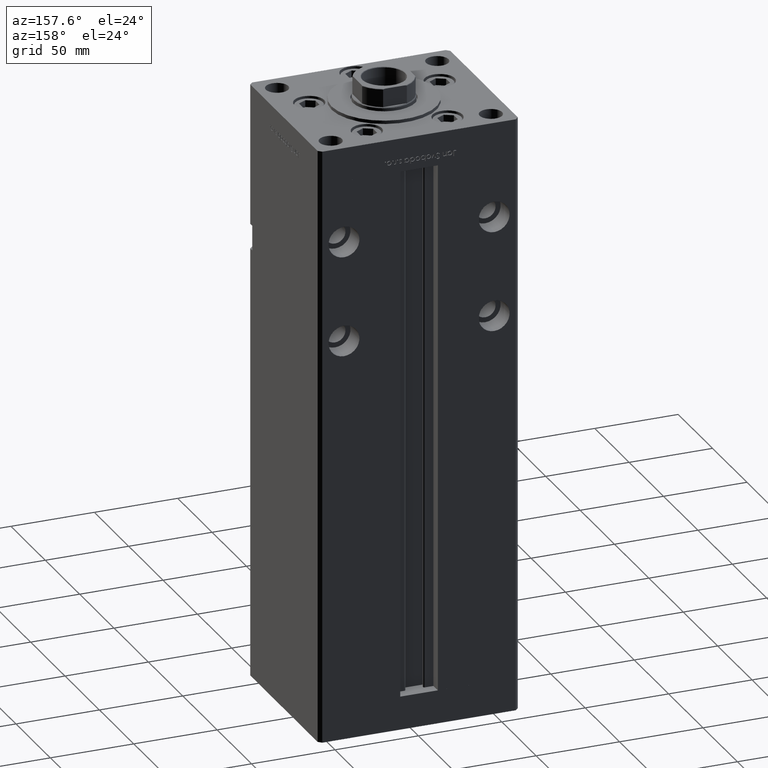
[diagram: clean part render]
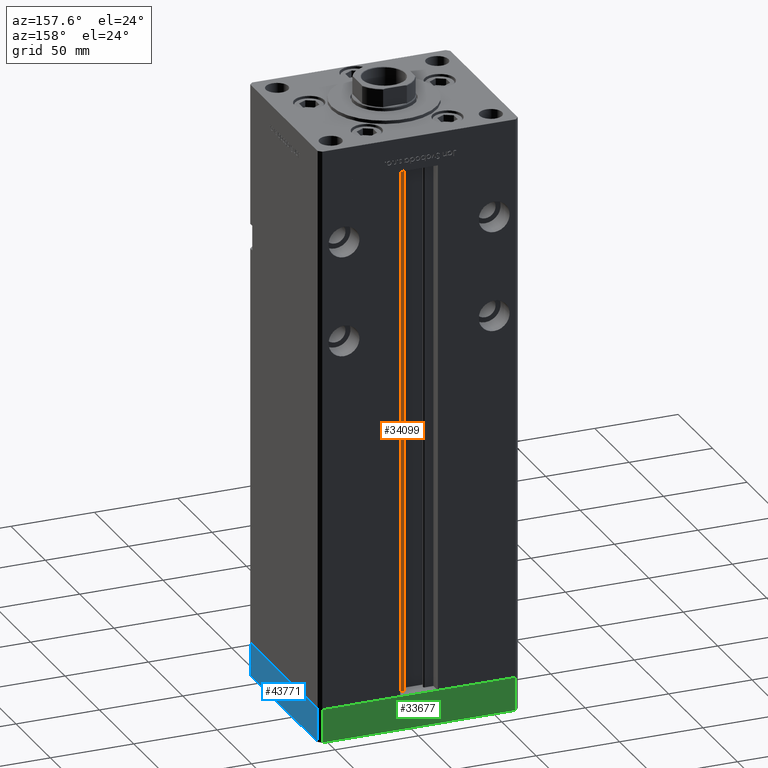
[diagram: same view with three faces highlighted in distinct colors, each labeled with its STEP entity id]
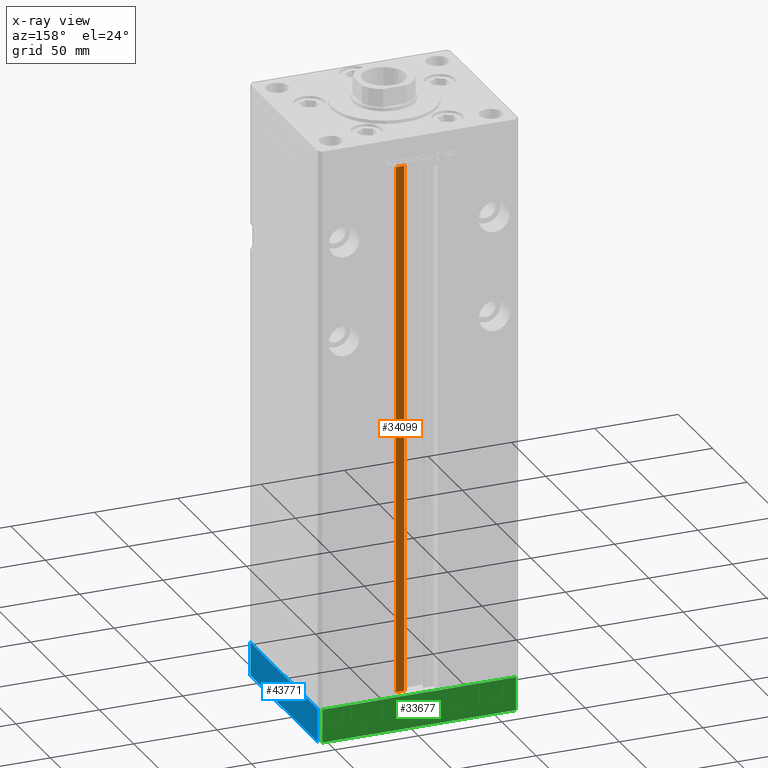
[diagram: x-ray of the same camera — body ghosted, the three highlighted faces saturated]
A machine part, auxiliary view with three faces highlighted in distinct colors.
The next image is the same camera in x-ray (body ghosted, the three faces saturated) — at least one of them is partly hidden behind the body in this view.
Their STEP definitions:

[orange] entity #34099 — the highlighted planar face has unit normal (0, -1, 0).
#891 = PLANE ( 'NONE',  #11999 ) ;
#2201 = VERTEX_POINT ( 'NONE', #43640 ) ;
#2742 = LINE ( 'NONE', #39762, #47132 ) ;
#3332 = CARTESIAN_POINT ( 'NONE',  ( 6.183333333333997928, 44.50000000000000711, 0.000000000000000000 ) ) ;
#3602 = VECTOR ( 'NONE', #36067, 1000.000000000000000 ) ;
#4915 = CARTESIAN_POINT ( 'NONE',  ( 6.183333333333997928, 44.50000000000000711, 0.000000000000000000 ) ) ;
#9753 = FACE_OUTER_BOUND ( 'NONE', #33207, .T. ) ;
#10016 = DIRECTION ( 'NONE',  ( 0.000000000000000000, -1.000000000000000000, 0.000000000000000000 ) ) ;
#11999 = AXIS2_PLACEMENT_3D ( 'NONE', #4915, #10016, #42477 ) ;
#13197 = LINE ( 'NONE', #33595, #51918 ) ;
#15438 = VERTEX_POINT ( 'NONE', #39069 ) ;
#19665 = CARTESIAN_POINT ( 'NONE',  ( 6.183333333333997928, 44.50000000000000711, 0.000000000000000000 ) ) ;
#20857 = VERTEX_POINT ( 'NONE', #19665 ) ;
#21439 = EDGE_CURVE ( 'NONE', #15438, #2201, #13197, .T. ) ;
#22645 = DIRECTION ( 'NONE',  ( -0.000000000000000000, -0.000000000000000000, 1.000000000000000000 ) ) ;
#27919 = ORIENTED_EDGE ( 'NONE', *, *, #34216, .T. ) ;
#28063 = CARTESIAN_POINT ( 'NONE',  ( 0.000000000000000000, 44.50000000000000711, 318.5000000000000000 ) ) ;
#28797 = ORIENTED_EDGE ( 'NONE', *, *, #21439, .F. ) ;
#29585 = DIRECTION ( 'NONE',  ( -0.000000000000000000, -0.000000000000000000, 1.000000000000000000 ) ) ;
#33207 = EDGE_LOOP ( 'NONE', ( #28797, #44274, #27919, #42712 ) ) ;
#33595 = CARTESIAN_POINT ( 'NONE',  ( 11.24999999999999822, 44.50000000000000711, 0.000000000000000000 ) ) ;
#34099 = ADVANCED_FACE ( 'NONE', ( #9753 ), #891, .F. ) ;
#34216 = EDGE_CURVE ( 'NONE', #20857, #51157, #2742, .T. ) ;
#34705 = EDGE_CURVE ( 'NONE', #2201, #51157, #52995, .T. ) ;
#35601 = CARTESIAN_POINT ( 'NONE',  ( 6.183333333333997928, 44.50000000000000711, 318.5000000000000000 ) ) ;
#36067 = DIRECTION ( 'NONE',  ( 1.000000000000000000, 0.000000000000000000, 0.000000000000000000 ) ) ;
#39069 = CARTESIAN_POINT ( 'NONE',  ( 11.24999999999999822, 44.50000000000000711, 0.000000000000000000 ) ) ;
#39762 = CARTESIAN_POINT ( 'NONE',  ( 6.183333333333997928, 44.50000000000000711, 0.000000000000000000 ) ) ;
#42477 = DIRECTION ( 'NONE',  ( 0.000000000000000000, -0.000000000000000000, -1.000000000000000000 ) ) ;
#42712 = ORIENTED_EDGE ( 'NONE', *, *, #34705, .F. ) ;
#43640 = CARTESIAN_POINT ( 'NONE',  ( 11.24999999999999822, 44.50000000000000711, 318.5000000000000000 ) ) ;
#43848 = LINE ( 'NONE', #3332, #3602 ) ;
#44258 = EDGE_CURVE ( 'NONE', #20857, #15438, #43848, .T. ) ;
#44274 = ORIENTED_EDGE ( 'NONE', *, *, #44258, .F. ) ;
#47132 = VECTOR ( 'NONE', #22645, 1000.000000000000000 ) ;
#48681 = DIRECTION ( 'NONE',  ( -1.000000000000000000, 0.000000000000000000, 0.000000000000000000 ) ) ;
#50579 = VECTOR ( 'NONE', #48681, 1000.000000000000000 ) ;
#51157 = VERTEX_POINT ( 'NONE', #35601 ) ;
#51918 = VECTOR ( 'NONE', #29585, 1000.000000000000000 ) ;
#52995 = LINE ( 'NONE', #28063, #50579 ) ;

[blue] entity #43771 — the highlighted planar face has unit normal (1, 0, 0).
#65 = VERTEX_POINT ( 'NONE', #50177 ) ;
#1006 = VECTOR ( 'NONE', #2671, 1000.000000000000000 ) ;
#1621 = LINE ( 'NONE', #18797, #1006 ) ;
#1968 = CARTESIAN_POINT ( 'NONE',  ( -60.00000000000000000, 48.99999999999995737, 0.000000000000000000 ) ) ;
#2508 = VERTEX_POINT ( 'NONE', #40867 ) ;
#2671 = DIRECTION ( 'NONE',  ( 0.000000000000000000, -1.000000000000000000, 0.000000000000000000 ) ) ;
#7812 = CARTESIAN_POINT ( 'NONE',  ( -60.00000000000000000, 48.99999999999995737, 0.000000000000000000 ) ) ;
#11687 = EDGE_CURVE ( 'NONE', #29225, #65, #13500, .T. ) ;
#13015 = AXIS2_PLACEMENT_3D ( 'NONE', #27635, #51258, #43197 ) ;
#13500 = LINE ( 'NONE', #30153, #46485 ) ;
#14316 = DIRECTION ( 'NONE',  ( 0.000000000000000000, -1.000000000000000000, 0.000000000000000000 ) ) ;
#15859 = EDGE_LOOP ( 'NONE', ( #51934, #50645, #27486, #52547 ) ) ;
#18797 = CARTESIAN_POINT ( 'NONE',  ( -60.00000000000000000, 48.99999999999995737, -20.00000000000000000 ) ) ;
#19207 = CARTESIAN_POINT ( 'NONE',  ( -60.00000000000000000, -49.00000000000000000, -20.00000000000000000 ) ) ;
#20348 = EDGE_CURVE ( 'NONE', #2508, #37166, #46049, .T. ) ;
#25314 = EDGE_CURVE ( 'NONE', #37166, #65, #29894, .T. ) ;
#26848 = PLANE ( 'NONE',  #13015 ) ;
#27486 = ORIENTED_EDGE ( 'NONE', *, *, #42750, .T. ) ;
#27635 = CARTESIAN_POINT ( 'NONE',  ( -60.00000000000000000, 48.99999999999995737, -20.00000000000000000 ) ) ;
#29225 = VERTEX_POINT ( 'NONE', #19207 ) ;
#29703 = CARTESIAN_POINT ( 'NONE',  ( -60.00000000000000000, 48.99999999999995737, -20.00000000000000000 ) ) ;
#29894 = LINE ( 'NONE', #1968, #38291 ) ;
#30153 = CARTESIAN_POINT ( 'NONE',  ( -60.00000000000000000, -49.00000000000000000, -20.00000000000000000 ) ) ;
#33718 = DIRECTION ( 'NONE',  ( 0.000000000000000000, 0.000000000000000000, 1.000000000000000000 ) ) ;
#34626 = FACE_OUTER_BOUND ( 'NONE', #15859, .T. ) ;
#37166 = VERTEX_POINT ( 'NONE', #7812 ) ;
#38291 = VECTOR ( 'NONE', #14316, 1000.000000000000000 ) ;
#40867 = CARTESIAN_POINT ( 'NONE',  ( -60.00000000000000000, 48.99999999999995737, -20.00000000000000000 ) ) ;
#42739 = DIRECTION ( 'NONE',  ( 0.000000000000000000, 0.000000000000000000, 1.000000000000000000 ) ) ;
#42750 = EDGE_CURVE ( 'NONE', #2508, #29225, #1621, .T. ) ;
#43197 = DIRECTION ( 'NONE',  ( 0.000000000000000000, 0.000000000000000000, 1.000000000000000000 ) ) ;
#43771 = ADVANCED_FACE ( 'NONE', ( #34626 ), #26848, .T. ) ;
#46049 = LINE ( 'NONE', #29703, #49297 ) ;
#46485 = VECTOR ( 'NONE', #42739, 1000.000000000000000 ) ;
#49297 = VECTOR ( 'NONE', #33718, 1000.000000000000000 ) ;
#50177 = CARTESIAN_POINT ( 'NONE',  ( -60.00000000000000000, -49.00000000000000000, 0.000000000000000000 ) ) ;
#50645 = ORIENTED_EDGE ( 'NONE', *, *, #20348, .F. ) ;
#51258 = DIRECTION ( 'NONE',  ( -1.000000000000000000, 0.000000000000000000, 0.000000000000000000 ) ) ;
#51934 = ORIENTED_EDGE ( 'NONE', *, *, #25314, .F. ) ;
#52547 = ORIENTED_EDGE ( 'NONE', *, *, #11687, .T. ) ;

[green] entity #33677 — the highlighted planar face has unit normal (-0, 1, 0).
#3701 = VECTOR ( 'NONE', #17426, 1000.000000000000000 ) ;
#4085 = VERTEX_POINT ( 'NONE', #7791 ) ;
#6421 = ORIENTED_EDGE ( 'NONE', *, *, #8456, .T. ) ;
#6737 = VERTEX_POINT ( 'NONE', #31047 ) ;
#7791 = CARTESIAN_POINT ( 'NONE',  ( -57.99999999999999289, 50.99999999999997868, 0.000000000000000000 ) ) ;
#8456 = EDGE_CURVE ( 'NONE', #15835, #4085, #28701, .T. ) ;
#10028 = CARTESIAN_POINT ( 'NONE',  ( 57.99999999999993605, 51.00000000000000711, -20.00000000000000000 ) ) ;
#10929 = DIRECTION ( 'NONE',  ( -2.392722035830079958E-16, 1.000000000000000000, 0.000000000000000000 ) ) ;
#14935 = VERTEX_POINT ( 'NONE', #10028 ) ;
#15189 = VECTOR ( 'NONE', #32863, 1000.000000000000000 ) ;
#15752 = CARTESIAN_POINT ( 'NONE',  ( 57.99999999999993605, 51.00000000000000711, -20.00000000000000000 ) ) ;
#15835 = VERTEX_POINT ( 'NONE', #35770 ) ;
#17426 = DIRECTION ( 'NONE',  ( 0.000000000000000000, 0.000000000000000000, 1.000000000000000000 ) ) ;
#18414 = VECTOR ( 'NONE', #33283, 1000.000000000000000 ) ;
#19616 = ORIENTED_EDGE ( 'NONE', *, *, #24173, .F. ) ;
#19927 = CARTESIAN_POINT ( 'NONE',  ( 57.99999999999993605, 51.00000000000000711, -20.00000000000000000 ) ) ;
#20924 = CARTESIAN_POINT ( 'NONE',  ( -57.99999999999999289, 50.99999999999997868, -20.00000000000000000 ) ) ;
#24173 = EDGE_CURVE ( 'NONE', #14935, #6737, #27972, .T. ) ;
#26057 = EDGE_CURVE ( 'NONE', #14935, #15835, #36881, .T. ) ;
#26758 = ORIENTED_EDGE ( 'NONE', *, *, #26057, .T. ) ;
#27972 = LINE ( 'NONE', #19927, #35416 ) ;
#28701 = LINE ( 'NONE', #20924, #3701 ) ;
#29264 = CARTESIAN_POINT ( 'NONE',  ( 57.99999999999993605, 51.00000000000000711, 0.000000000000000000 ) ) ;
#31047 = CARTESIAN_POINT ( 'NONE',  ( 57.99999999999993605, 51.00000000000000711, 0.000000000000000000 ) ) ;
#32863 = DIRECTION ( 'NONE',  ( -1.000000000000000000, -2.392722035830079958E-16, 0.000000000000000000 ) ) ;
#33029 = LINE ( 'NONE', #29264, #18414 ) ;
#33283 = DIRECTION ( 'NONE',  ( -1.000000000000000000, -2.392722035830079958E-16, 0.000000000000000000 ) ) ;
#33677 = ADVANCED_FACE ( 'NONE', ( #52233 ), #47684, .T. ) ;
#34051 = EDGE_LOOP ( 'NONE', ( #49267, #19616, #26758, #6421 ) ) ;
#35351 = DIRECTION ( 'NONE',  ( -1.000000000000000000, -2.392722035830079958E-16, 0.000000000000000000 ) ) ;
#35416 = VECTOR ( 'NONE', #44848, 1000.000000000000000 ) ;
#35770 = CARTESIAN_POINT ( 'NONE',  ( -57.99999999999999289, 50.99999999999997868, -20.00000000000000000 ) ) ;
#36881 = LINE ( 'NONE', #37939, #15189 ) ;
#37939 = CARTESIAN_POINT ( 'NONE',  ( 57.99999999999993605, 51.00000000000000711, -20.00000000000000000 ) ) ;
#40221 = AXIS2_PLACEMENT_3D ( 'NONE', #15752, #10929, #35351 ) ;
#44848 = DIRECTION ( 'NONE',  ( 0.000000000000000000, 0.000000000000000000, 1.000000000000000000 ) ) ;
#47684 = PLANE ( 'NONE',  #40221 ) ;
#49267 = ORIENTED_EDGE ( 'NONE', *, *, #52089, .F. ) ;
#52089 = EDGE_CURVE ( 'NONE', #6737, #4085, #33029, .T. ) ;
#52233 = FACE_OUTER_BOUND ( 'NONE', #34051, .T. ) ;